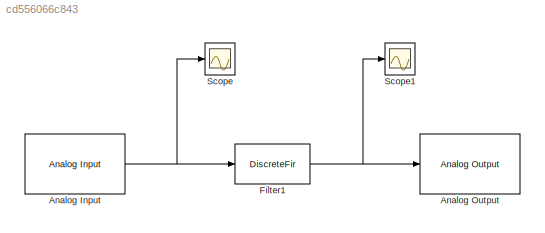
MODEL slx_cd556066c843
KIND model
CONFIG AbsTol = auto
CONFIG EnableMultiTasking = on
CONFIG FixedStep = auto
CONFIG MaxStep = auto
CONFIG MinStep = auto
CONFIG RelTol = 1e-3
CONFIG SampleTimeConstraint = Unconstrained
CONFIG SolverName = FixedStepAuto
CONFIG StartTime = 0.0
CONFIG StopTime = inf
BLOCK [Reference] Analog Input  REF=mbedblockslib/Analog Input
  LibrarySourceBlock = stmnucleorootlib/Common/Analog Input
  SourceBlock = mbedblockslib/Analog Input
  SourceType = mbed.AnalogInput
BLOCK [Reference] Analog Output  REF=mbedblockslib/Analog Output
  LibrarySourceBlock = stmnucleorootlib/Common/Analog Output
  SourceBlock = mbedblockslib/Analog Output
  SourceType = mbed.AnalogOutput
BLOCK [DiscreteFir] Filter1
  Coefficients = [0.00279338949794727138 0.00293554236882408778 0.0033323544055344767 0.00398138831923215523 0.00487583849757456875 0.00600461082722566607 0.00735247934428078214 0.00890031742730998908 0.0106253998591397496 0.0125017707557309836 0.0145006711190816436 0.0165910186399558131 0.0187399313773742374 0.0209132860946962852 0.0230763013534455719 0.0251941349692740117 0.0272324851296710108 0.0291581843666066...<+735ch>
  InputPortMap = u0
  InputProcessing = Columns as channels (frame based)
  OutputPortMap = o0
  Tag = BlockMethodSubSystem
BLOCK [Scope] Scope
  Floating = off
  NumInputPorts = 1
  ScopeSpecificationString = Simulink.scopes.TimeScopeBlockCfg('CurrentConfiguration', extmgr.ConfigurationSet(extmgr.Configuration('Core','General UI',true),extmgr.Configuration('Core','Source UI',true),extmgr.Configuration('Sources','WiredSimulink',true),extmgr.Configuration('Visuals','Time Domain',true),extmgr.Configuration('Tools','Plot Navigation',true),extmgr.Configuration('Tools','Measurements',true)),'Version','2023a'...<+1ch>
BLOCK [Scope] Scope1
  Floating = off
  NumInputPorts = 1
  ScopeSpecificationString = Simulink.scopes.TimeScopeBlockCfg('CurrentConfiguration', extmgr.ConfigurationSet(extmgr.Configuration('Core','General UI',true),extmgr.Configuration('Core','Source UI',true),extmgr.Configuration('Sources','WiredSimulink',true,'DataLoggingVariableName','ScopeData1'),extmgr.Configuration('Visuals','Time Domain',true),extmgr.Configuration('Tools','Plot Navigation',true),extmgr.Configuration('Tools',...<+40ch>
NET Analog Input:1 -> Filter1:1, Scope:1
NET Filter1:1 -> Analog Output:1, Scope1:1
note: NET lines group one-source signal fan-out (src -> all destinations, sorted); 1:1 wires keep LINE
